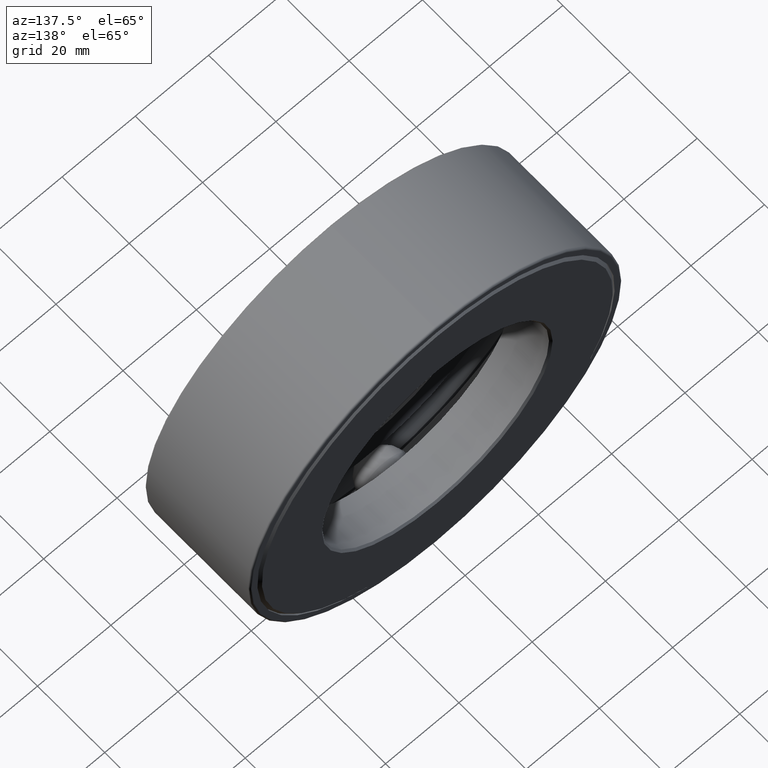
[diagram: clean part render]
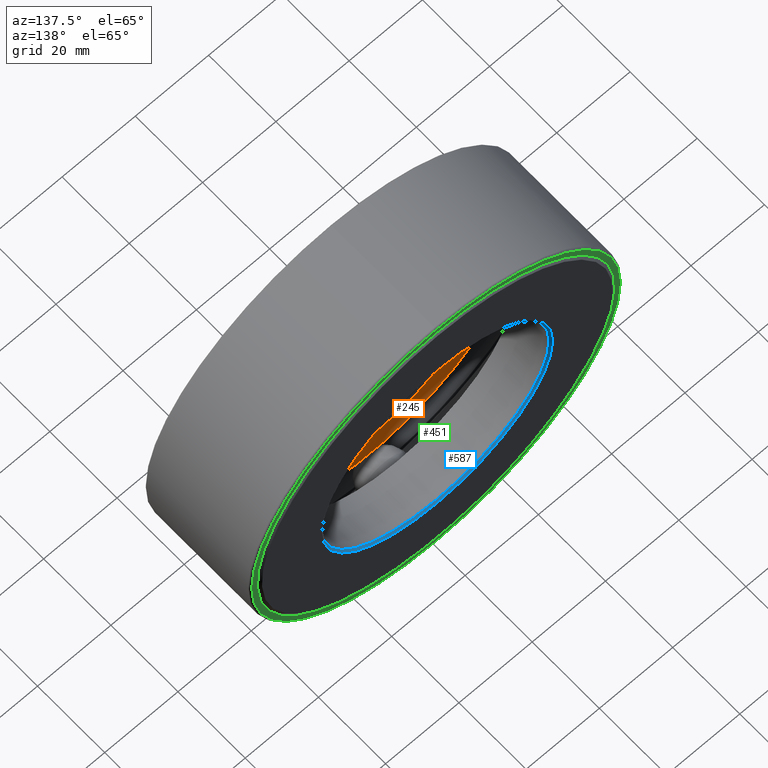
[diagram: same view with three faces highlighted in distinct colors, each labeled with its STEP entity id]
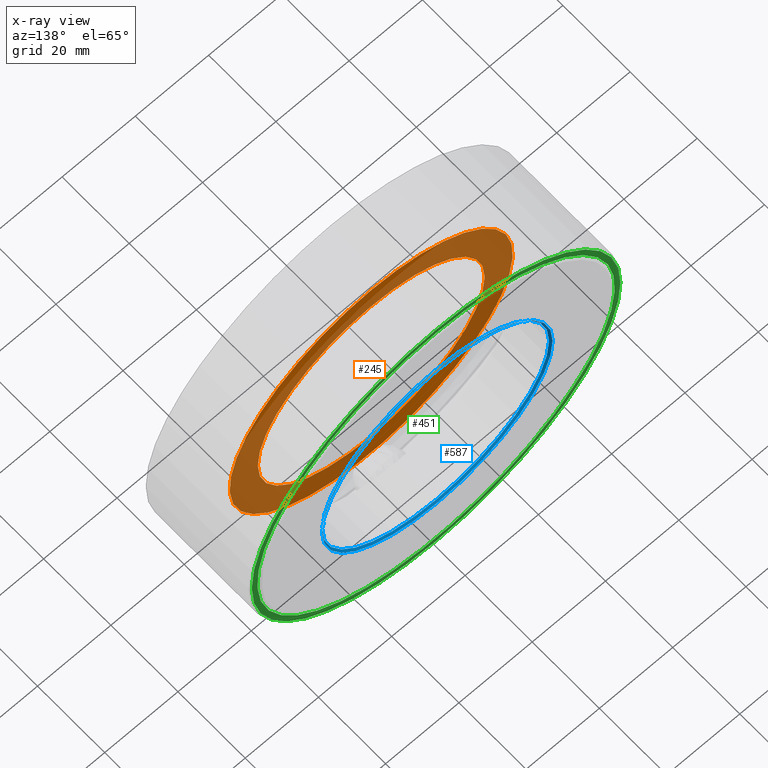
[diagram: x-ray of the same camera — body ghosted, the three highlighted faces saturated]
A machine part, auxiliary view with three faces highlighted in distinct colors.
The next image is the same camera in x-ray (body ghosted, the three faces saturated) — at least one of them is partly hidden behind the body in this view.
Their STEP definitions:

[orange] entity #245 — the highlighted planar face has unit normal (0, -1, 0).
#9 = CARTESIAN_POINT ( 'NONE',  ( 0.0000000000000000000, 0.4749999999999999800, 1.520999999999999900 ) ) ;
#17 = AXIS2_PLACEMENT_3D ( 'NONE', #475, #196, #285 ) ;
#45 = FACE_BOUND ( 'NONE', #461, .T. ) ;
#55 = DIRECTION ( 'NONE',  ( 0.0000000000000000000, 0.0000000000000000000, 1.000000000000000000 ) ) ;
#62 = VERTEX_POINT ( 'NONE', #9 ) ;
#63 = CARTESIAN_POINT ( 'NONE',  ( 0.0000000000000000000, 0.4750000000000001400, 1.218750000000000000 ) ) ;
#64 = CIRCLE ( 'NONE', #368, 1.218750000000000000 ) ;
#150 = DIRECTION ( 'NONE',  ( -0.0000000000000000000, 1.000000000000000000, -0.0000000000000000000 ) ) ;
#178 = DIRECTION ( 'NONE',  ( 0.0000000000000000000, 0.0000000000000000000, 1.000000000000000000 ) ) ;
#196 = DIRECTION ( 'NONE',  ( 0.0000000000000000000, -1.000000000000000000, 0.0000000000000000000 ) ) ;
#240 = AXIS2_PLACEMENT_3D ( 'NONE', #417, #462, #178 ) ;
#245 = ADVANCED_FACE ( 'NONE', ( #45, #278 ), #568, .F. ) ;
#255 = EDGE_CURVE ( 'NONE', #456, #456, #64, .T. ) ;
#278 = FACE_OUTER_BOUND ( 'NONE', #282, .T. ) ;
#282 = EDGE_LOOP ( 'NONE', ( #298 ) ) ;
#285 = DIRECTION ( 'NONE',  ( 0.0000000000000000000, -0.0000000000000000000, -1.000000000000000000 ) ) ;
#298 = ORIENTED_EDGE ( 'NONE', *, *, #448, .T. ) ;
#317 = ORIENTED_EDGE ( 'NONE', *, *, #255, .F. ) ;
#368 = AXIS2_PLACEMENT_3D ( 'NONE', #439, #150, #55 ) ;
#417 = CARTESIAN_POINT ( 'NONE',  ( 0.0000000000000000000, 0.4749999999999999800, 0.0000000000000000000 ) ) ;
#439 = CARTESIAN_POINT ( 'NONE',  ( 0.0000000000000000000, 0.4750000000000001400, 0.0000000000000000000 ) ) ;
#448 = EDGE_CURVE ( 'NONE', #62, #62, #480, .T. ) ;
#456 = VERTEX_POINT ( 'NONE', #63 ) ;
#461 = EDGE_LOOP ( 'NONE', ( #317 ) ) ;
#462 = DIRECTION ( 'NONE',  ( -0.0000000000000000000, 1.000000000000000000, -0.0000000000000000000 ) ) ;
#475 = CARTESIAN_POINT ( 'NONE',  ( -2.146613394525272800E-016, 0.4750000000000000300, 0.0000000000000000000 ) ) ;
#480 = CIRCLE ( 'NONE', #240, 1.520999999999999900 ) ;
#568 = PLANE ( 'NONE',  #17 ) ;

[blue] entity #587 — the highlighted conical surface has half-angle 45 deg.
#23 = CIRCLE ( 'NONE', #275, 1.218750000000000000 ) ;
#35 = AXIS2_PLACEMENT_3D ( 'NONE', #324, #281, #474 ) ;
#147 = DIRECTION ( 'NONE',  ( 0.0000000000000000000, 0.0000000000000000000, 1.000000000000000000 ) ) ;
#157 = CARTESIAN_POINT ( 'NONE',  ( 0.0000000000000000000, 1.250000000000000000, 1.238750000000000200 ) ) ;
#164 = EDGE_LOOP ( 'NONE', ( #512 ) ) ;
#204 = FACE_OUTER_BOUND ( 'NONE', #510, .T. ) ;
#275 = AXIS2_PLACEMENT_3D ( 'NONE', #424, #554, #147 ) ;
#281 = DIRECTION ( 'NONE',  ( -0.0000000000000000000, 1.000000000000000000, -0.0000000000000000000 ) ) ;
#303 = CIRCLE ( 'NONE', #478, 1.238750000000000200 ) ;
#310 = DIRECTION ( 'NONE',  ( -0.0000000000000000000, 1.000000000000000000, -0.0000000000000000000 ) ) ;
#324 = CARTESIAN_POINT ( 'NONE',  ( 0.0000000000000000000, 1.230000000000000000, 0.0000000000000000000 ) ) ;
#365 = DIRECTION ( 'NONE',  ( 0.0000000000000000000, 0.0000000000000000000, 1.000000000000000000 ) ) ;
#424 = CARTESIAN_POINT ( 'NONE',  ( 0.0000000000000000000, 1.230000000000000000, 0.0000000000000000000 ) ) ;
#452 = EDGE_CURVE ( 'NONE', #593, #593, #303, .T. ) ;
#474 = DIRECTION ( 'NONE',  ( 0.0000000000000000000, 0.0000000000000000000, 1.000000000000000000 ) ) ;
#478 = AXIS2_PLACEMENT_3D ( 'NONE', #590, #310, #365 ) ;
#494 = CONICAL_SURFACE ( 'NONE', #35, 1.218750000000000000, 0.7853981633974517200 ) ;
#509 = ORIENTED_EDGE ( 'NONE', *, *, #452, .T. ) ;
#510 = EDGE_LOOP ( 'NONE', ( #509 ) ) ;
#511 = CARTESIAN_POINT ( 'NONE',  ( 0.0000000000000000000, 1.230000000000000000, 1.218750000000000000 ) ) ;
#512 = ORIENTED_EDGE ( 'NONE', *, *, #575, .F. ) ;
#552 = FACE_BOUND ( 'NONE', #164, .T. ) ;
#554 = DIRECTION ( 'NONE',  ( -0.0000000000000000000, 1.000000000000000000, -0.0000000000000000000 ) ) ;
#566 = VERTEX_POINT ( 'NONE', #511 ) ;
#575 = EDGE_CURVE ( 'NONE', #566, #566, #23, .T. ) ;
#587 = ADVANCED_FACE ( 'NONE', ( #204, #552 ), #494, .F. ) ;
#590 = CARTESIAN_POINT ( 'NONE',  ( 0.0000000000000000000, 1.250000000000000000, 0.0000000000000000000 ) ) ;
#593 = VERTEX_POINT ( 'NONE', #157 ) ;

[green] entity #451 — the highlighted planar face has unit normal (0, -1, 0).
#4 = CARTESIAN_POINT ( 'NONE',  ( 0.0000000000000000000, 1.235000000000000100, 0.0000000000000000000 ) ) ;
#6 = DIRECTION ( 'NONE',  ( -0.0000000000000000000, 1.000000000000000000, -0.0000000000000000000 ) ) ;
#13 = CARTESIAN_POINT ( 'NONE',  ( 0.0000000000000000000, 1.235000000000000100, 1.980000000000000000 ) ) ;
#71 = FACE_BOUND ( 'NONE', #531, .T. ) ;
#100 = EDGE_LOOP ( 'NONE', ( #173 ) ) ;
#168 = FACE_OUTER_BOUND ( 'NONE', #100, .T. ) ;
#172 = DIRECTION ( 'NONE',  ( 0.0000000000000000000, -0.0000000000000000000, -1.000000000000000000 ) ) ;
#173 = ORIENTED_EDGE ( 'NONE', *, *, #304, .T. ) ;
#176 = CARTESIAN_POINT ( 'NONE',  ( 0.0000000000000000000, 1.235000000000000100, 0.0000000000000000000 ) ) ;
#207 = DIRECTION ( 'NONE',  ( 0.0000000000000000000, 0.0000000000000000000, 1.000000000000000000 ) ) ;
#217 = CARTESIAN_POINT ( 'NONE',  ( 0.0000000000000000000, 1.235000000000000100, 0.0000000000000000000 ) ) ;
#241 = EDGE_CURVE ( 'NONE', #330, #330, #401, .T. ) ;
#243 = VERTEX_POINT ( 'NONE', #13 ) ;
#268 = AXIS2_PLACEMENT_3D ( 'NONE', #217, #538, #207 ) ;
#288 = DIRECTION ( 'NONE',  ( 0.0000000000000000000, 0.0000000000000000000, 1.000000000000000000 ) ) ;
#304 = EDGE_CURVE ( 'NONE', #243, #243, #541, .T. ) ;
#330 = VERTEX_POINT ( 'NONE', #436 ) ;
#401 = CIRCLE ( 'NONE', #500, 1.919999999999999900 ) ;
#413 = AXIS2_PLACEMENT_3D ( 'NONE', #176, #549, #172 ) ;
#415 = PLANE ( 'NONE',  #413 ) ;
#436 = CARTESIAN_POINT ( 'NONE',  ( 0.0000000000000000000, 1.235000000000000100, 1.919999999999999900 ) ) ;
#451 = ADVANCED_FACE ( 'NONE', ( #71, #168 ), #415, .F. ) ;
#485 = ORIENTED_EDGE ( 'NONE', *, *, #241, .F. ) ;
#500 = AXIS2_PLACEMENT_3D ( 'NONE', #4, #6, #288 ) ;
#531 = EDGE_LOOP ( 'NONE', ( #485 ) ) ;
#538 = DIRECTION ( 'NONE',  ( -0.0000000000000000000, 1.000000000000000000, -0.0000000000000000000 ) ) ;
#541 = CIRCLE ( 'NONE', #268, 1.980000000000000000 ) ;
#549 = DIRECTION ( 'NONE',  ( 0.0000000000000000000, -1.000000000000000000, 0.0000000000000000000 ) ) ;